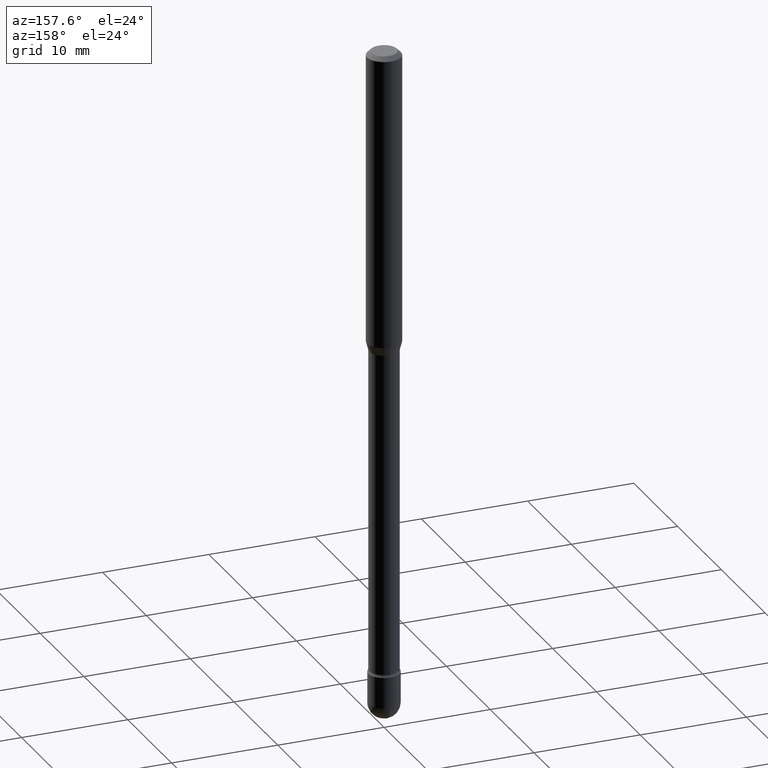
[diagram: clean part render]
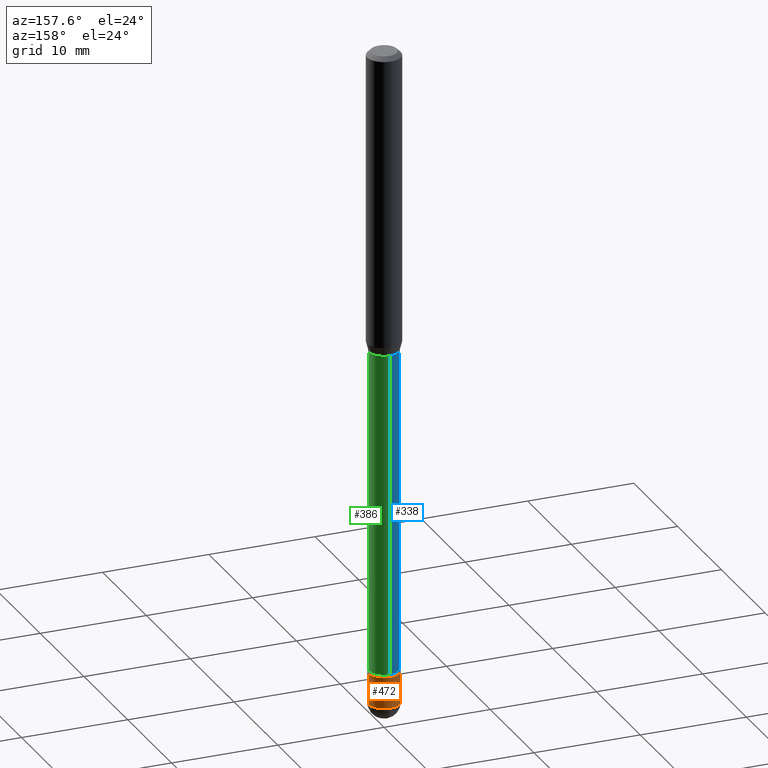
[diagram: same view with three faces highlighted in distinct colors, each labeled with its STEP entity id]
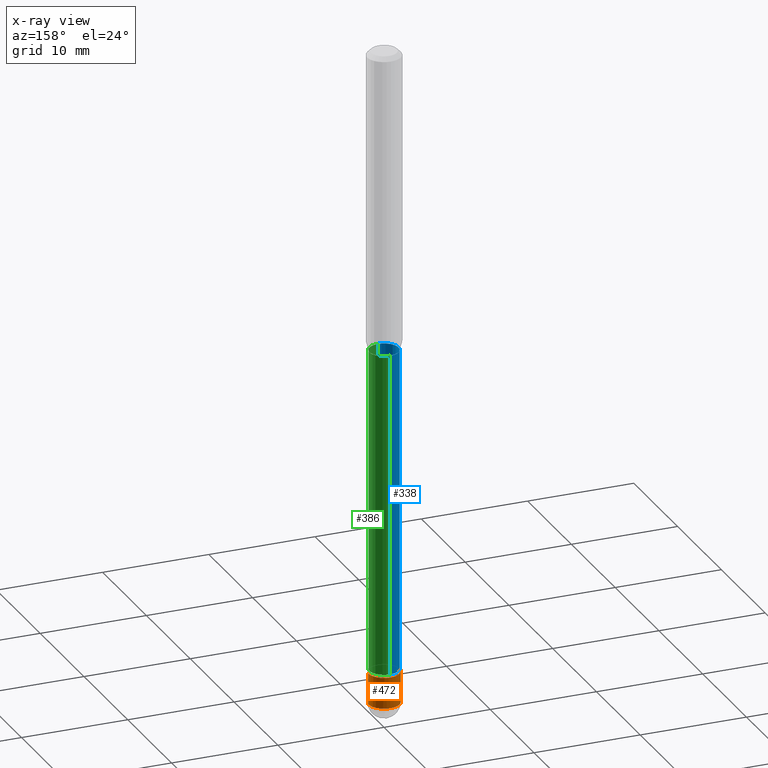
[diagram: x-ray of the same camera — body ghosted, the three highlighted faces saturated]
A machine part, auxiliary view with three faces highlighted in distinct colors.
The next image is the same camera in x-ray (body ghosted, the three faces saturated) — at least one of them is partly hidden behind the body in this view.
Their STEP definitions:

[orange] entity #472 — the highlighted cylindrical surface (edge-blend (fillet) strip) has radius 1.4605 mm, axis along (-0, 0, 1).
#14 = ORIENTED_EDGE ( 'NONE', *, *, #108, .F. ) ;
#37 = CYLINDRICAL_SURFACE ( 'NONE', #434, 0.05750000000000000250 ) ;
#40 = EDGE_CURVE ( 'NONE', #190, #114, #441, .T. ) ;
#43 = AXIS2_PLACEMENT_3D ( 'NONE', #446, #265, #445 ) ;
#45 = CARTESIAN_POINT ( 'NONE',  ( 0.000000000000000000, 0.000000000000000000, 0.000000000000000000 ) ) ;
#56 = CIRCLE ( 'NONE', #43, 0.05750000000000000250 ) ;
#59 = EDGE_LOOP ( 'NONE', ( #385, #466, #14, #508, #505 ) ) ;
#66 = EDGE_CURVE ( 'NONE', #239, #254, #357, .T. ) ;
#67 = CARTESIAN_POINT ( 'NONE',  ( 5.973057559107196227E-29, -8.527943170124383355E-15, -2.442499999999999893 ) ) ;
#82 = CARTESIAN_POINT ( 'NONE',  ( -0.05750000000000000250, -7.917748049744133834E-15, -2.442499999999999893 ) ) ;
#108 = EDGE_CURVE ( 'NONE', #254, #339, #56, .T. ) ;
#114 = VERTEX_POINT ( 'NONE', #82 ) ;
#128 = DIRECTION ( 'NONE',  ( 1.000000000000000000, -6.982962677686273810E-15, 0.000000000000000000 ) ) ;
#144 = CARTESIAN_POINT ( 'NONE',  ( 0.05750000000000000250, -8.727830476773152219E-15, -2.442499999999999893 ) ) ;
#147 = DIRECTION ( 'NONE',  ( -2.445468806185136597E-29, 3.491481338843145583E-15, 1.000000000000000000 ) ) ;
#155 = AXIS2_PLACEMENT_3D ( 'NONE', #215, #522, #128 ) ;
#156 = DIRECTION ( 'NONE',  ( 1.000000000000000000, -6.982962677686273810E-15, 0.000000000000000000 ) ) ;
#166 = DIRECTION ( 'NONE',  ( -2.445468806185136877E-29, 3.491481338843145188E-15, 1.000000000000000000 ) ) ;
#167 = CARTESIAN_POINT ( 'NONE',  ( -0.05750000000000000250, 4.085620730620576246E-16, -2.828387676896570712E-30 ) ) ;
#169 = CARTESIAN_POINT ( 'NONE',  ( 0.05750000000000000250, -4.015203539669603161E-16, 2.803801646082662941E-30 ) ) ;
#190 = VERTEX_POINT ( 'NONE', #491 ) ;
#215 = CARTESIAN_POINT ( 'NONE',  ( 5.973057559107196227E-29, -8.527943170124383355E-15, -2.442499999999999893 ) ) ;
#239 = VERTEX_POINT ( 'NONE', #144 ) ;
#251 = CARTESIAN_POINT ( 'NONE',  ( -0.05750000000000000250, -7.917748049744133834E-15, -2.326999999999999957 ) ) ;
#254 = VERTEX_POINT ( 'NONE', #496 ) ;
#265 = DIRECTION ( 'NONE',  ( -2.445468806185136597E-29, 3.491481338843145583E-15, 1.000000000000000000 ) ) ;
#292 = FACE_OUTER_BOUND ( 'NONE', #59, .T. ) ;
#298 = LINE ( 'NONE', #167, #351 ) ;
#307 = DIRECTION ( 'NONE',  ( 1.000000000000000000, -6.982962677686265922E-15, 4.876176775795935232E-29 ) ) ;
#339 = VERTEX_POINT ( 'NONE', #251 ) ;
#351 = VECTOR ( 'NONE', #476, 39.37007874015748143 ) ;
#357 = LINE ( 'NONE', #169, #453 ) ;
#385 = ORIENTED_EDGE ( 'NONE', *, *, #40, .T. ) ;
#389 = AXIS2_PLACEMENT_3D ( 'NONE', #67, #147, #156 ) ;
#434 = AXIS2_PLACEMENT_3D ( 'NONE', #45, #436, #307 ) ;
#436 = DIRECTION ( 'NONE',  ( -2.445468806185136597E-29, 3.491481338843145583E-15, 1.000000000000000000 ) ) ;
#441 = CIRCLE ( 'NONE', #389, 0.05750000000000000250 ) ;
#445 = DIRECTION ( 'NONE',  ( 1.000000000000000000, -6.982962677686273810E-15, 0.000000000000000000 ) ) ;
#446 = CARTESIAN_POINT ( 'NONE',  ( 5.690605911992812897E-29, -8.124677075487999464E-15, -2.326999999999999957 ) ) ;
#453 = VECTOR ( 'NONE', #166, 39.37007874015748143 ) ;
#455 = CIRCLE ( 'NONE', #155, 0.05750000000000000250 ) ;
#466 = ORIENTED_EDGE ( 'NONE', *, *, #504, .T. ) ;
#472 = ADVANCED_FACE ( 'NONE', ( #292 ), #37, .T. ) ;
#476 = DIRECTION ( 'NONE',  ( -2.445468806185136877E-29, 3.491481338843145188E-15, 1.000000000000000000 ) ) ;
#491 = CARTESIAN_POINT ( 'NONE',  ( 4.015203539670203189E-16, 0.05749999999999150929, -2.442500000000000338 ) ) ;
#496 = CARTESIAN_POINT ( 'NONE',  ( 0.05750000000000000250, -8.526197429454961062E-15, -2.326999999999999957 ) ) ;
#504 = EDGE_CURVE ( 'NONE', #114, #339, #298, .T. ) ;
#505 = ORIENTED_EDGE ( 'NONE', *, *, #556, .T. ) ;
#508 = ORIENTED_EDGE ( 'NONE', *, *, #66, .F. ) ;
#522 = DIRECTION ( 'NONE',  ( -2.445468806185136597E-29, 3.491481338843145583E-15, 1.000000000000000000 ) ) ;
#556 = EDGE_CURVE ( 'NONE', #239, #190, #455, .T. ) ;

[blue] entity #338 — the highlighted cylindrical surface (edge-blend (fillet) strip) has radius 1.3729 mm, axis along (-0, 0, 1).
#11 = CIRCLE ( 'NONE', #19, 0.05405000000000000082 ) ;
#13 = CARTESIAN_POINT ( 'NONE',  ( 5.667268681845476108E-29, -8.091164613728519785E-15, -2.317429341715430802 ) ) ;
#19 = AXIS2_PLACEMENT_3D ( 'NONE', #417, #102, #235 ) ;
#24 = ORIENTED_EDGE ( 'NONE', *, *, #543, .T. ) ;
#36 = ORIENTED_EDGE ( 'NONE', *, *, #176, .F. ) ;
#62 = VECTOR ( 'NONE', #414, 39.37007874015748143 ) ;
#73 = CARTESIAN_POINT ( 'NONE',  ( -1.169113584055446105E-44, 1.669184350826100908E-30, 4.780733988912460139E-16 ) ) ;
#84 = VECTOR ( 'NONE', #121, 39.37007874015748143 ) ;
#89 = AXIS2_PLACEMENT_3D ( 'NONE', #13, #140, #324 ) ;
#92 = CARTESIAN_POINT ( 'NONE',  ( 3.840483486783346000E-16, 0.05405000000000007021, 2.893610875815497126E-16 ) ) ;
#102 = DIRECTION ( 'NONE',  ( -2.445497940252363543E-29, 3.491439617200668170E-15, 1.000000000000000000 ) ) ;
#115 = VERTEX_POINT ( 'NONE', #259 ) ;
#120 = CARTESIAN_POINT ( 'NONE',  ( -3.774291327288869168E-16, -0.05405000000000822341, -2.317429341715430358 ) ) ;
#121 = DIRECTION ( 'NONE',  ( -2.445497940252363824E-29, 3.491439617200667775E-15, 1.000000000000000000 ) ) ;
#140 = DIRECTION ( 'NONE',  ( -2.445497940252363543E-29, 3.491439617200668170E-15, 1.000000000000000000 ) ) ;
#176 = EDGE_CURVE ( 'NONE', #294, #115, #538, .T. ) ;
#188 = CARTESIAN_POINT ( 'NONE',  ( 3.963052108702531075E-16, 0.05404999999999203497, -2.317429341715430802 ) ) ;
#235 = DIRECTION ( 'NONE',  ( -6.982962677686265922E-15, -1.000000000000000000, 2.527148930309216761E-15 ) ) ;
#256 = DIRECTION ( 'NONE',  ( -6.982962677686265922E-15, -1.000000000000000000, 3.491439617200667381E-15 ) ) ;
#258 = EDGE_CURVE ( 'NONE', #115, #468, #11, .T. ) ;
#259 = CARTESIAN_POINT ( 'NONE',  ( 3.840483486783912008E-16, 0.05404999999999607341, -1.121974787463811296 ) ) ;
#284 = FACE_OUTER_BOUND ( 'NONE', #510, .T. ) ;
#294 = VERTEX_POINT ( 'NONE', #188 ) ;
#301 = AXIS2_PLACEMENT_3D ( 'NONE', #73, #382, #256 ) ;
#305 = EDGE_CURVE ( 'NONE', #294, #388, #403, .T. ) ;
#324 = DIRECTION ( 'NONE',  ( -6.982962677686265922E-15, -1.000000000000000000, 5.054297860618420899E-15 ) ) ;
#331 = ORIENTED_EDGE ( 'NONE', *, *, #258, .F. ) ;
#332 = CYLINDRICAL_SURFACE ( 'NONE', #301, 0.05405000000000007021 ) ;
#338 = ADVANCED_FACE ( 'NONE', ( #284 ), #332, .T. ) ;
#345 = CARTESIAN_POINT ( 'NONE',  ( -3.774291327289431725E-16, -0.05405000000000007021, 6.667857102009424138E-16 ) ) ;
#382 = DIRECTION ( 'NONE',  ( -2.445497940252363543E-29, 3.491439617200668170E-15, 1.000000000000000000 ) ) ;
#388 = VERTEX_POINT ( 'NONE', #120 ) ;
#393 = LINE ( 'NONE', #345, #84 ) ;
#403 = CIRCLE ( 'NONE', #89, 0.05405000000000013266 ) ;
#414 = DIRECTION ( 'NONE',  ( -2.445497940252363824E-29, 3.491439617200667775E-15, 1.000000000000000000 ) ) ;
#417 = CARTESIAN_POINT ( 'NONE',  ( 2.743787031757833688E-29, -3.917307222451449411E-15, -1.121974787463811074 ) ) ;
#421 = ORIENTED_EDGE ( 'NONE', *, *, #305, .T. ) ;
#468 = VERTEX_POINT ( 'NONE', #516 ) ;
#510 = EDGE_LOOP ( 'NONE', ( #36, #421, #24, #331 ) ) ;
#516 = CARTESIAN_POINT ( 'NONE',  ( -3.774291327289152665E-16, -0.05405000000000392130, -1.121974787463811074 ) ) ;
#538 = LINE ( 'NONE', #92, #62 ) ;
#543 = EDGE_CURVE ( 'NONE', #388, #468, #393, .T. ) ;

[green] entity #386 — the highlighted cylindrical surface (edge-blend (fillet) strip) has radius 1.3729 mm, axis along (-0, 0, 1).
#20 = ORIENTED_EDGE ( 'NONE', *, *, #176, .T. ) ;
#30 = CYLINDRICAL_SURFACE ( 'NONE', #288, 0.05405000000000007021 ) ;
#62 = VECTOR ( 'NONE', #414, 39.37007874015748143 ) ;
#65 = DIRECTION ( 'NONE',  ( -2.445497940252363543E-29, 3.491439617200668170E-15, 1.000000000000000000 ) ) ;
#75 = EDGE_LOOP ( 'NONE', ( #282, #20, #418, #539 ) ) ;
#79 = DIRECTION ( 'NONE',  ( -2.445497940252363543E-29, 3.491439617200668170E-15, 1.000000000000000000 ) ) ;
#84 = VECTOR ( 'NONE', #121, 39.37007874015748143 ) ;
#92 = CARTESIAN_POINT ( 'NONE',  ( 3.840483486783346000E-16, 0.05405000000000007021, 2.893610875815497126E-16 ) ) ;
#105 = CARTESIAN_POINT ( 'NONE',  ( 2.743787031757833688E-29, -3.917307222451449411E-15, -1.121974787463811074 ) ) ;
#115 = VERTEX_POINT ( 'NONE', #259 ) ;
#120 = CARTESIAN_POINT ( 'NONE',  ( -3.774291327288869168E-16, -0.05405000000000822341, -2.317429341715430358 ) ) ;
#121 = DIRECTION ( 'NONE',  ( -2.445497940252363824E-29, 3.491439617200667775E-15, 1.000000000000000000 ) ) ;
#176 = EDGE_CURVE ( 'NONE', #294, #115, #538, .T. ) ;
#188 = CARTESIAN_POINT ( 'NONE',  ( 3.963052108702531075E-16, 0.05404999999999203497, -2.317429341715430802 ) ) ;
#211 = DIRECTION ( 'NONE',  ( -2.445497940252363543E-29, 3.491439617200668170E-15, 1.000000000000000000 ) ) ;
#238 = AXIS2_PLACEMENT_3D ( 'NONE', #105, #79, #344 ) ;
#259 = CARTESIAN_POINT ( 'NONE',  ( 3.840483486783912008E-16, 0.05404999999999607341, -1.121974787463811296 ) ) ;
#282 = ORIENTED_EDGE ( 'NONE', *, *, #365, .T. ) ;
#288 = AXIS2_PLACEMENT_3D ( 'NONE', #464, #65, #552 ) ;
#294 = VERTEX_POINT ( 'NONE', #188 ) ;
#296 = DIRECTION ( 'NONE',  ( -6.982962677686265922E-15, -1.000000000000000000, 5.054297860618420899E-15 ) ) ;
#317 = CIRCLE ( 'NONE', #554, 0.05405000000000013266 ) ;
#318 = EDGE_CURVE ( 'NONE', #468, #115, #473, .T. ) ;
#344 = DIRECTION ( 'NONE',  ( -6.982962677686265922E-15, -1.000000000000000000, 2.527148930309216761E-15 ) ) ;
#345 = CARTESIAN_POINT ( 'NONE',  ( -3.774291327289431725E-16, -0.05405000000000007021, 6.667857102009424138E-16 ) ) ;
#365 = EDGE_CURVE ( 'NONE', #388, #294, #317, .T. ) ;
#386 = ADVANCED_FACE ( 'NONE', ( #475 ), #30, .T. ) ;
#388 = VERTEX_POINT ( 'NONE', #120 ) ;
#393 = LINE ( 'NONE', #345, #84 ) ;
#414 = DIRECTION ( 'NONE',  ( -2.445497940252363824E-29, 3.491439617200667775E-15, 1.000000000000000000 ) ) ;
#418 = ORIENTED_EDGE ( 'NONE', *, *, #318, .F. ) ;
#464 = CARTESIAN_POINT ( 'NONE',  ( -1.169113584055446105E-44, 1.669184350826100908E-30, 4.780733988912460139E-16 ) ) ;
#468 = VERTEX_POINT ( 'NONE', #516 ) ;
#473 = CIRCLE ( 'NONE', #238, 0.05405000000000000082 ) ;
#475 = FACE_OUTER_BOUND ( 'NONE', #75, .T. ) ;
#516 = CARTESIAN_POINT ( 'NONE',  ( -3.774291327289152665E-16, -0.05405000000000392130, -1.121974787463811074 ) ) ;
#538 = LINE ( 'NONE', #92, #62 ) ;
#539 = ORIENTED_EDGE ( 'NONE', *, *, #543, .F. ) ;
#543 = EDGE_CURVE ( 'NONE', #388, #468, #393, .T. ) ;
#549 = CARTESIAN_POINT ( 'NONE',  ( 5.667268681845476108E-29, -8.091164613728519785E-15, -2.317429341715430802 ) ) ;
#552 = DIRECTION ( 'NONE',  ( -6.982962677686265922E-15, -1.000000000000000000, 3.491439617200667381E-15 ) ) ;
#554 = AXIS2_PLACEMENT_3D ( 'NONE', #549, #211, #296 ) ;